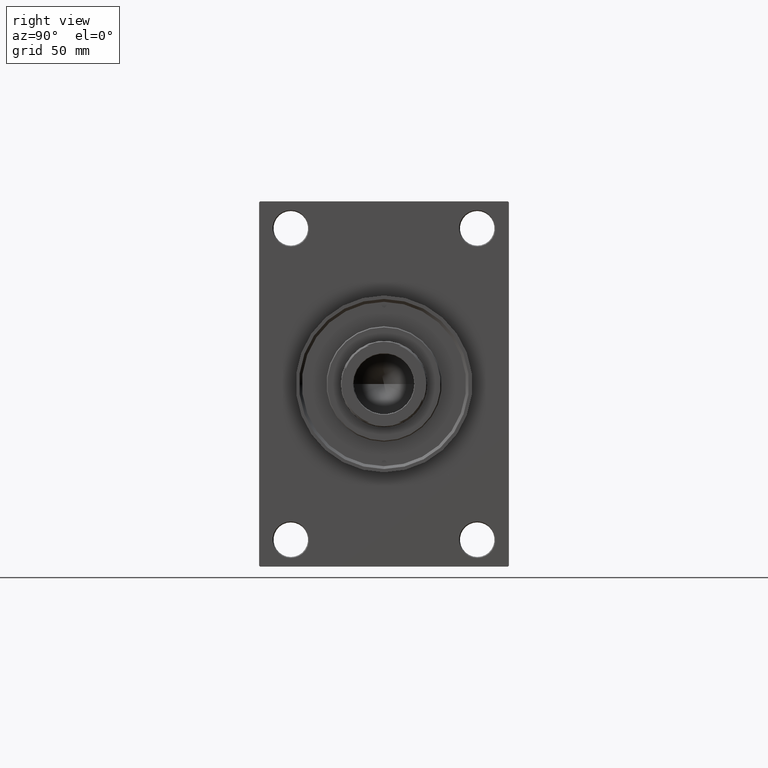
[diagram: clean part render]
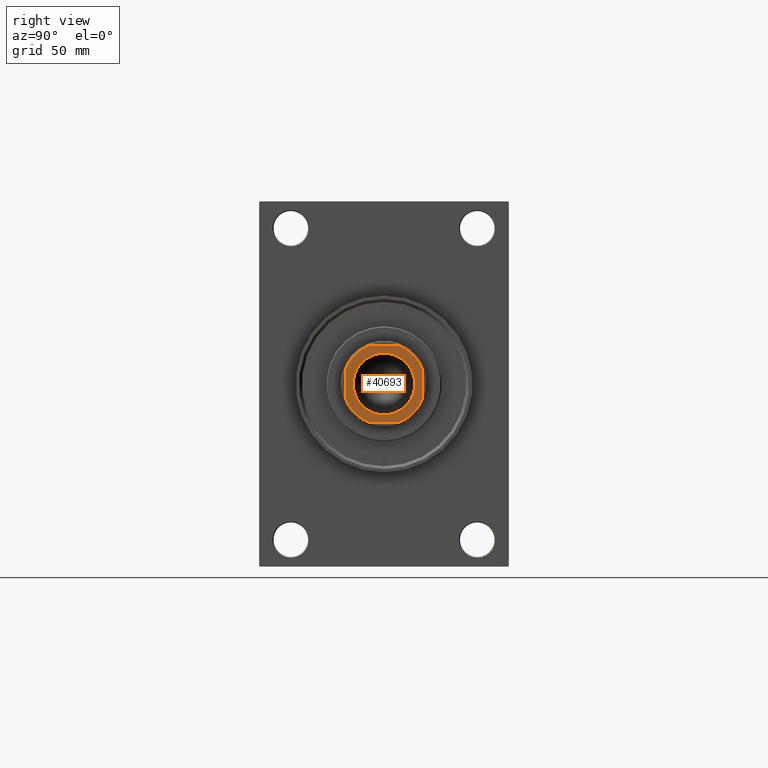
[diagram: same view with one face highlighted and labeled with its STEP entity id]
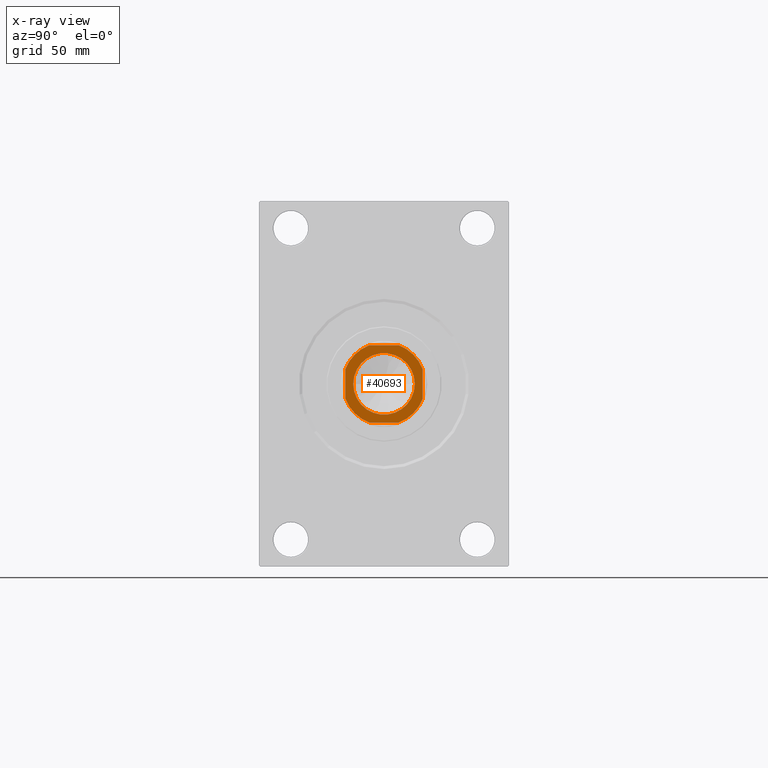
[diagram: x-ray of the same camera — body ghosted, the highlighted face saturated]
A machine part, right view. The second image highlights one B-rep face of the part: STEP entity #40693.
The next image is the same camera in x-ray: the body ghosted, the highlighted face saturated — about 0% of this face is hidden behind the body in this view.
In plain terms, the highlighted planar face has unit normal (1, 0, 0).
Its self-contained STEP definition (entity closure, byte-faithful):
#584 = LINE ( 'NONE', #44875, #38306 ) ;
#1309 = AXIS2_PLACEMENT_3D ( 'NONE', #11538, #7924, #44460 ) ;
#1433 = EDGE_CURVE ( 'NONE', #29256, #42214, #26137, .T. ) ;
#1734 = DIRECTION ( 'NONE',  ( 1.734723475976807094E-16, -1.000000000000000000, 0.000000000000000000 ) ) ;
#2439 = CIRCLE ( 'NONE', #17886, 16.05000000000003624 ) ;
#2486 = CIRCLE ( 'NONE', #38055, 21.50000000000002487 ) ;
#3057 = ORIENTED_EDGE ( 'NONE', *, *, #29381, .T. ) ;
#3390 = PLANE ( 'NONE',  #21044 ) ;
#3548 = DIRECTION ( 'NONE',  ( 0.000000000000000000, -0.000000000000000000, -1.000000000000000000 ) ) ;
#4406 = CARTESIAN_POINT ( 'NONE',  ( -19.99999999999999645, -20.00000000000000000, 238.0000000000000000 ) ) ;
#6105 = VERTEX_POINT ( 'NONE', #32968 ) ;
#7490 = ORIENTED_EDGE ( 'NONE', *, *, #10636, .T. ) ;
#7621 = DIRECTION ( 'NONE',  ( -1.000000000000000000, -0.000000000000000000, -0.000000000000000000 ) ) ;
#7924 = DIRECTION ( 'NONE',  ( -0.000000000000000000, 0.000000000000000000, 1.000000000000000000 ) ) ;
#8916 = CARTESIAN_POINT ( 'NONE',  ( -20.00000000000000000, 7.889866919029703496, 238.0000000000000000 ) ) ;
#9738 = AXIS2_PLACEMENT_3D ( 'NONE', #32574, #14415, #47344 ) ;
#10231 = EDGE_CURVE ( 'NONE', #35516, #29256, #584, .T. ) ;
#10339 = CARTESIAN_POINT ( 'NONE',  ( 20.00000000000000000, -7.889866919029816295, 238.0000000000000000 ) ) ;
#10439 = CARTESIAN_POINT ( 'NONE',  ( 0.000000000000000000, 0.000000000000000000, 238.0000000000000000 ) ) ;
#10636 = EDGE_CURVE ( 'NONE', #37840, #6105, #43719, .T. ) ;
#10766 = DIRECTION ( 'NONE',  ( -1.734723475976807094E-16, 1.000000000000000000, -0.000000000000000000 ) ) ;
#10980 = EDGE_CURVE ( 'NONE', #28678, #18181, #16680, .T. ) ;
#11071 = CARTESIAN_POINT ( 'NONE',  ( 0.000000000000000000, 0.000000000000000000, 238.0000000000000000 ) ) ;
#11538 = CARTESIAN_POINT ( 'NONE',  ( 0.000000000000000000, 0.000000000000000000, 238.0000000000000000 ) ) ;
#12512 = CARTESIAN_POINT ( 'NONE',  ( -7.889866919029707049, 20.00000000000000000, 238.0000000000000000 ) ) ;
#12964 = VERTEX_POINT ( 'NONE', #10339 ) ;
#13350 = FACE_BOUND ( 'NONE', #18019, .T. ) ;
#13493 = ORIENTED_EDGE ( 'NONE', *, *, #1433, .T. ) ;
#13651 = CARTESIAN_POINT ( 'NONE',  ( 16.05000000000003624, 0.000000000000000000, 238.0000000000000000 ) ) ;
#14415 = DIRECTION ( 'NONE',  ( 0.000000000000000000, -0.000000000000000000, -1.000000000000000000 ) ) ;
#14588 = DIRECTION ( 'NONE',  ( 1.000000000000000000, 0.000000000000000000, 0.000000000000000000 ) ) ;
#15834 = DIRECTION ( 'NONE',  ( 1.000000000000000000, 0.000000000000000000, 0.000000000000000000 ) ) ;
#16589 = EDGE_CURVE ( 'NONE', #12964, #33555, #25522, .T. ) ;
#16680 = CIRCLE ( 'NONE', #9738, 16.05000000000003624 ) ;
#17102 = VECTOR ( 'NONE', #1734, 1000.000000000000000 ) ;
#17521 = EDGE_CURVE ( 'NONE', #33555, #35516, #47700, .T. ) ;
#17630 = VECTOR ( 'NONE', #10766, 1000.000000000000000 ) ;
#17886 = AXIS2_PLACEMENT_3D ( 'NONE', #11071, #3548, #29457 ) ;
#18019 = EDGE_LOOP ( 'NONE', ( #26291, #19321 ) ) ;
#18181 = VERTEX_POINT ( 'NONE', #39234 ) ;
#19181 = AXIS2_PLACEMENT_3D ( 'NONE', #19225, #33763, #15834 ) ;
#19225 = CARTESIAN_POINT ( 'NONE',  ( 0.000000000000000000, 0.000000000000000000, 238.0000000000000000 ) ) ;
#19321 = ORIENTED_EDGE ( 'NONE', *, *, #42432, .T. ) ;
#20418 = CARTESIAN_POINT ( 'NONE',  ( 7.889866919029736358, 20.00000000000000000, 238.0000000000000000 ) ) ;
#21044 = AXIS2_PLACEMENT_3D ( 'NONE', #10439, #36099, #25418 ) ;
#21166 = VERTEX_POINT ( 'NONE', #25119 ) ;
#21937 = CARTESIAN_POINT ( 'NONE',  ( -20.00000000000000000, -7.889866919029710601, 238.0000000000000000 ) ) ;
#22091 = DIRECTION ( 'NONE',  ( -0.000000000000000000, 0.000000000000000000, 1.000000000000000000 ) ) ;
#22473 = ORIENTED_EDGE ( 'NONE', *, *, #17521, .T. ) ;
#22848 = AXIS2_PLACEMENT_3D ( 'NONE', #44588, #22091, #14588 ) ;
#25119 = CARTESIAN_POINT ( 'NONE',  ( 7.889866919029819847, -20.00000000000000000, 238.0000000000000000 ) ) ;
#25418 = DIRECTION ( 'NONE',  ( 1.000000000000000000, 0.000000000000000000, 0.000000000000000000 ) ) ;
#25522 = LINE ( 'NONE', #43912, #17630 ) ;
#26137 = CIRCLE ( 'NONE', #19181, 21.49999999999998579 ) ;
#26213 = LINE ( 'NONE', #4406, #37514 ) ;
#26291 = ORIENTED_EDGE ( 'NONE', *, *, #10980, .T. ) ;
#26950 = EDGE_CURVE ( 'NONE', #42214, #37840, #45802, .T. ) ;
#27005 = ORIENTED_EDGE ( 'NONE', *, *, #26950, .T. ) ;
#27402 = CARTESIAN_POINT ( 'NONE',  ( -20.00000000000000355, 20.00000000000000000, 238.0000000000000000 ) ) ;
#28468 = DIRECTION ( 'NONE',  ( -0.000000000000000000, 0.000000000000000000, 1.000000000000000000 ) ) ;
#28678 = VERTEX_POINT ( 'NONE', #13651 ) ;
#29256 = VERTEX_POINT ( 'NONE', #12512 ) ;
#29367 = DIRECTION ( 'NONE',  ( 1.000000000000000000, 0.000000000000000000, 0.000000000000000000 ) ) ;
#29381 = EDGE_CURVE ( 'NONE', #21166, #12964, #2486, .T. ) ;
#29457 = DIRECTION ( 'NONE',  ( 1.000000000000000000, 0.000000000000000000, 0.000000000000000000 ) ) ;
#31979 = ORIENTED_EDGE ( 'NONE', *, *, #36772, .T. ) ;
#32212 = FACE_OUTER_BOUND ( 'NONE', #38428, .T. ) ;
#32574 = CARTESIAN_POINT ( 'NONE',  ( 0.000000000000000000, 0.000000000000000000, 238.0000000000000000 ) ) ;
#32968 = CARTESIAN_POINT ( 'NONE',  ( -7.889866919029707049, -20.00000000000000000, 238.0000000000000000 ) ) ;
#33555 = VERTEX_POINT ( 'NONE', #37816 ) ;
#33763 = DIRECTION ( 'NONE',  ( -0.000000000000000000, 0.000000000000000000, 1.000000000000000000 ) ) ;
#35516 = VERTEX_POINT ( 'NONE', #20418 ) ;
#36099 = DIRECTION ( 'NONE',  ( -0.000000000000000000, 0.000000000000000000, 1.000000000000000000 ) ) ;
#36772 = EDGE_CURVE ( 'NONE', #6105, #21166, #26213, .T. ) ;
#37514 = VECTOR ( 'NONE', #29367, 1000.000000000000000 ) ;
#37816 = CARTESIAN_POINT ( 'NONE',  ( 20.00000000000000000, 7.889866919029738135, 238.0000000000000000 ) ) ;
#37840 = VERTEX_POINT ( 'NONE', #21937 ) ;
#38055 = AXIS2_PLACEMENT_3D ( 'NONE', #39614, #28468, #39365 ) ;
#38306 = VECTOR ( 'NONE', #7621, 1000.000000000000000 ) ;
#38428 = EDGE_LOOP ( 'NONE', ( #42340, #22473, #41100, #13493, #27005, #7490, #31979, #3057 ) ) ;
#39234 = CARTESIAN_POINT ( 'NONE',  ( -16.05000000000003624, 1.965558112631506149E-15, 238.0000000000000000 ) ) ;
#39365 = DIRECTION ( 'NONE',  ( 1.000000000000000000, 0.000000000000000000, 0.000000000000000000 ) ) ;
#39614 = CARTESIAN_POINT ( 'NONE',  ( 0.000000000000000000, 0.000000000000000000, 238.0000000000000000 ) ) ;
#40693 = ADVANCED_FACE ( 'NONE', ( #13350, #32212 ), #3390, .T. ) ;
#41100 = ORIENTED_EDGE ( 'NONE', *, *, #10231, .T. ) ;
#42214 = VERTEX_POINT ( 'NONE', #8916 ) ;
#42340 = ORIENTED_EDGE ( 'NONE', *, *, #16589, .T. ) ;
#42432 = EDGE_CURVE ( 'NONE', #18181, #28678, #2439, .T. ) ;
#43719 = CIRCLE ( 'NONE', #22848, 21.49999999999998579 ) ;
#43912 = CARTESIAN_POINT ( 'NONE',  ( 19.99999999999999645, 20.00000000000000000, 238.0000000000000000 ) ) ;
#44460 = DIRECTION ( 'NONE',  ( 1.000000000000000000, 0.000000000000000000, 0.000000000000000000 ) ) ;
#44588 = CARTESIAN_POINT ( 'NONE',  ( 0.000000000000000000, 0.000000000000000000, 238.0000000000000000 ) ) ;
#44875 = CARTESIAN_POINT ( 'NONE',  ( -20.00000000000000355, 20.00000000000000000, 238.0000000000000000 ) ) ;
#45802 = LINE ( 'NONE', #27402, #17102 ) ;
#47344 = DIRECTION ( 'NONE',  ( 1.000000000000000000, 0.000000000000000000, 0.000000000000000000 ) ) ;
#47700 = CIRCLE ( 'NONE', #1309, 21.49999999999999645 ) ;